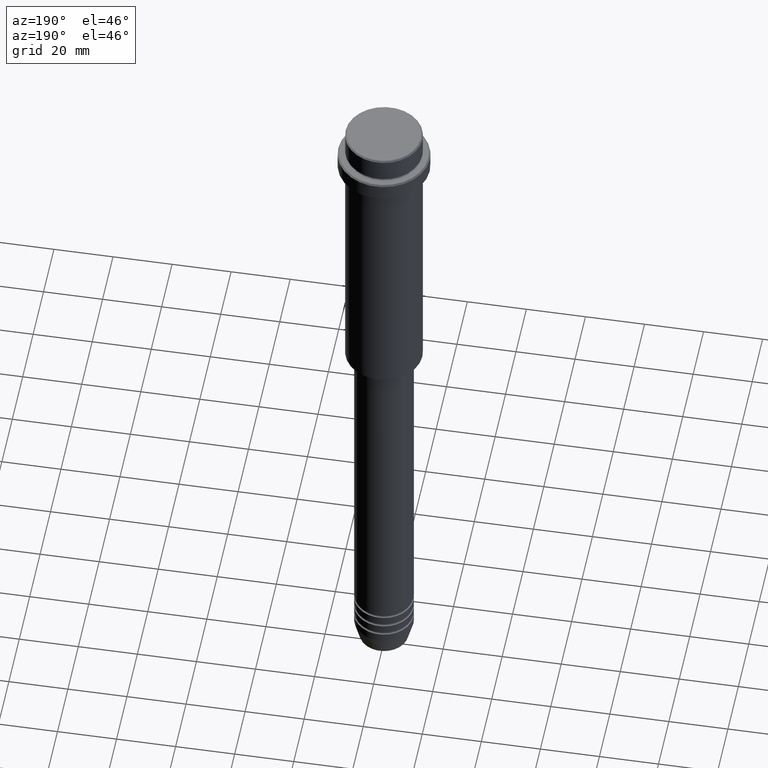
[diagram: clean part render]
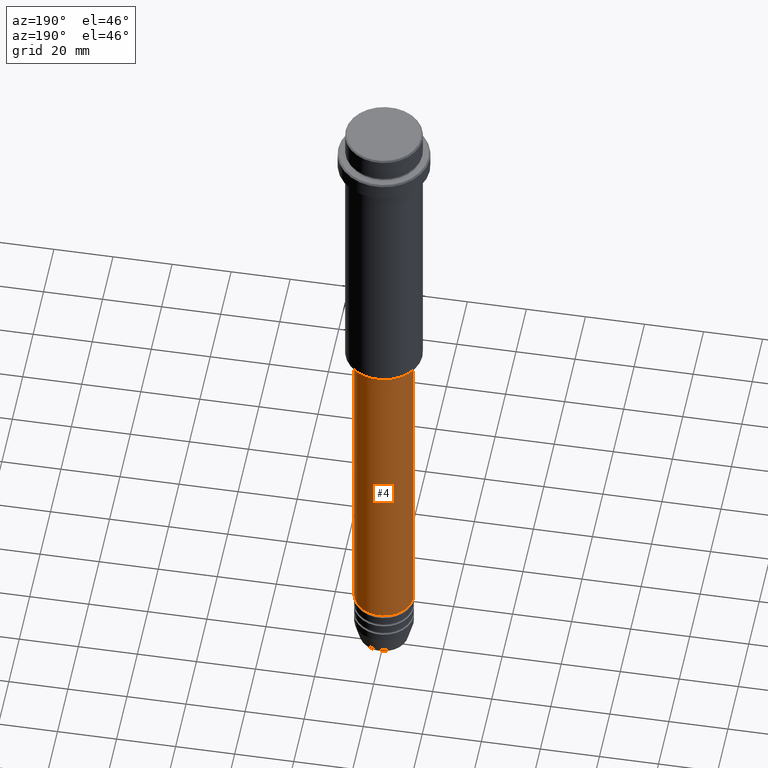
[diagram: same view with one face highlighted and labeled with its STEP entity id]
A machine part, auxiliary view. The second image highlights one B-rep face of the part: STEP entity #4.
In plain terms, the highlighted cylindrical surface (edge-blend (fillet) strip) has radius 10 mm, axis along (-0, -0, 1).
Its self-contained STEP definition (entity closure, byte-faithful):
#4 = ADVANCED_FACE ( 'NONE', ( #219 ), #880, .T. ) ;
#65 = LINE ( 'NONE', #614, #1154 ) ;
#68 = CARTESIAN_POINT ( 'NONE',  ( 0.000000000000000000, 0.000000000000000000, -220.9999999999999432 ) ) ;
#122 = CARTESIAN_POINT ( 'NONE',  ( -10.00000000000000000, 1.224646799147353256E-15, -220.9999999999999432 ) ) ;
#130 = ORIENTED_EDGE ( 'NONE', *, *, #562, .F. ) ;
#136 = VERTEX_POINT ( 'NONE', #1375 ) ;
#143 = EDGE_CURVE ( 'NONE', #356, #136, #65, .T. ) ;
#158 = ORIENTED_EDGE ( 'NONE', *, *, #177, .T. ) ;
#177 = EDGE_CURVE ( 'NONE', #1027, #872, #836, .T. ) ;
#208 = DIRECTION ( 'NONE',  ( -0.000000000000000000, -0.000000000000000000, 1.000000000000000000 ) ) ;
#219 = FACE_OUTER_BOUND ( 'NONE', #558, .T. ) ;
#338 = DIRECTION ( 'NONE',  ( 1.000000000000000000, 0.000000000000000000, 0.000000000000000000 ) ) ;
#356 = VERTEX_POINT ( 'NONE', #1237 ) ;
#366 = AXIS2_PLACEMENT_3D ( 'NONE', #1319, #581, #338 ) ;
#398 = DIRECTION ( 'NONE',  ( -0.000000000000000000, -0.000000000000000000, 1.000000000000000000 ) ) ;
#407 = AXIS2_PLACEMENT_3D ( 'NONE', #1101, #208, #1095 ) ;
#558 = EDGE_LOOP ( 'NONE', ( #1286, #158, #130, #1016 ) ) ;
#562 = EDGE_CURVE ( 'NONE', #136, #872, #1070, .T. ) ;
#581 = DIRECTION ( 'NONE',  ( -0.000000000000000000, -0.000000000000000000, 1.000000000000000000 ) ) ;
#614 = CARTESIAN_POINT ( 'NONE',  ( 10.00000000000000178, 0.000000000000000000, 0.000000000000000000 ) ) ;
#638 = DIRECTION ( 'NONE',  ( -0.000000000000000000, -0.000000000000000000, 1.000000000000000000 ) ) ;
#755 = CARTESIAN_POINT ( 'NONE',  ( -10.00000000000000178, 1.224646799147353454E-15, -106.0000000000000142 ) ) ;
#836 = LINE ( 'NONE', #1149, #1345 ) ;
#872 = VERTEX_POINT ( 'NONE', #755 ) ;
#880 = CYLINDRICAL_SURFACE ( 'NONE', #407, 10.00000000000000178 ) ;
#941 = AXIS2_PLACEMENT_3D ( 'NONE', #68, #638, #1163 ) ;
#967 = CIRCLE ( 'NONE', #941, 10.00000000000000000 ) ;
#1016 = ORIENTED_EDGE ( 'NONE', *, *, #143, .F. ) ;
#1027 = VERTEX_POINT ( 'NONE', #122 ) ;
#1070 = CIRCLE ( 'NONE', #366, 10.00000000000000178 ) ;
#1095 = DIRECTION ( 'NONE',  ( 1.000000000000000000, 0.000000000000000000, 0.000000000000000000 ) ) ;
#1101 = CARTESIAN_POINT ( 'NONE',  ( 0.000000000000000000, 0.000000000000000000, 0.000000000000000000 ) ) ;
#1142 = DIRECTION ( 'NONE',  ( -0.000000000000000000, -0.000000000000000000, 1.000000000000000000 ) ) ;
#1149 = CARTESIAN_POINT ( 'NONE',  ( -10.00000000000000178, 1.224646799147353454E-15, 0.000000000000000000 ) ) ;
#1154 = VECTOR ( 'NONE', #1142, 1000.000000000000000 ) ;
#1163 = DIRECTION ( 'NONE',  ( 1.000000000000000000, 0.000000000000000000, 0.000000000000000000 ) ) ;
#1237 = CARTESIAN_POINT ( 'NONE',  ( 10.00000000000000000, 0.000000000000000000, -220.9999999999999432 ) ) ;
#1286 = ORIENTED_EDGE ( 'NONE', *, *, #1373, .T. ) ;
#1319 = CARTESIAN_POINT ( 'NONE',  ( 0.000000000000000000, 0.000000000000000000, -106.0000000000000142 ) ) ;
#1345 = VECTOR ( 'NONE', #398, 1000.000000000000000 ) ;
#1373 = EDGE_CURVE ( 'NONE', #356, #1027, #967, .T. ) ;
#1375 = CARTESIAN_POINT ( 'NONE',  ( 10.00000000000000178, 0.000000000000000000, -106.0000000000000142 ) ) ;